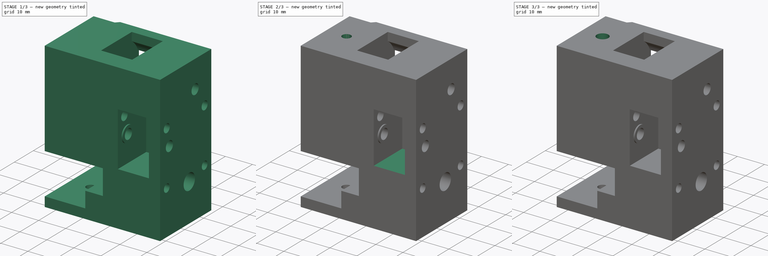
[diagram: build sequence overview — one tinted view per stage of 3, left to right]
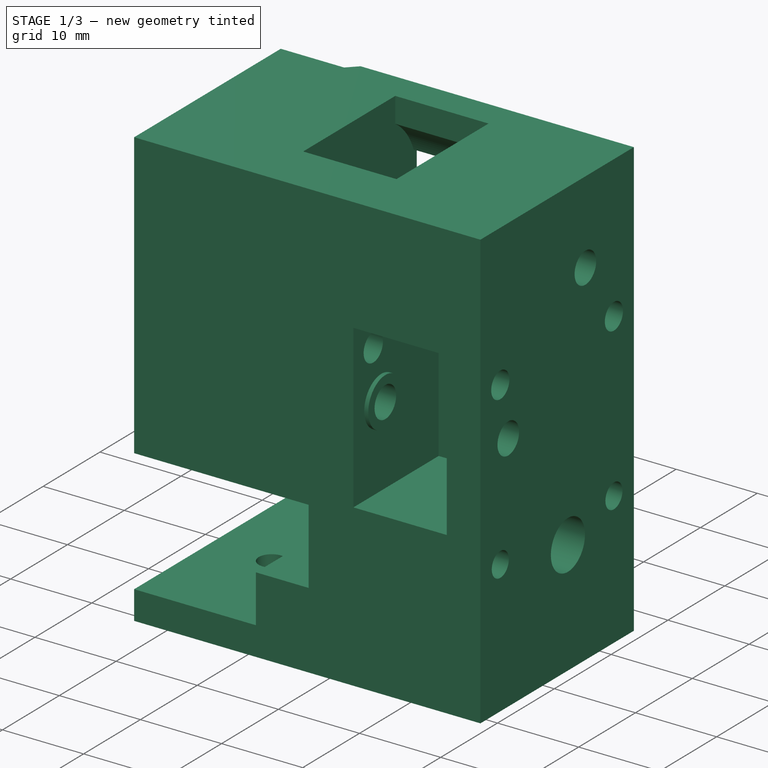
[diagram: stage 1 of 3 — iso view after this stage's code; geometry added in this stage tinted green]
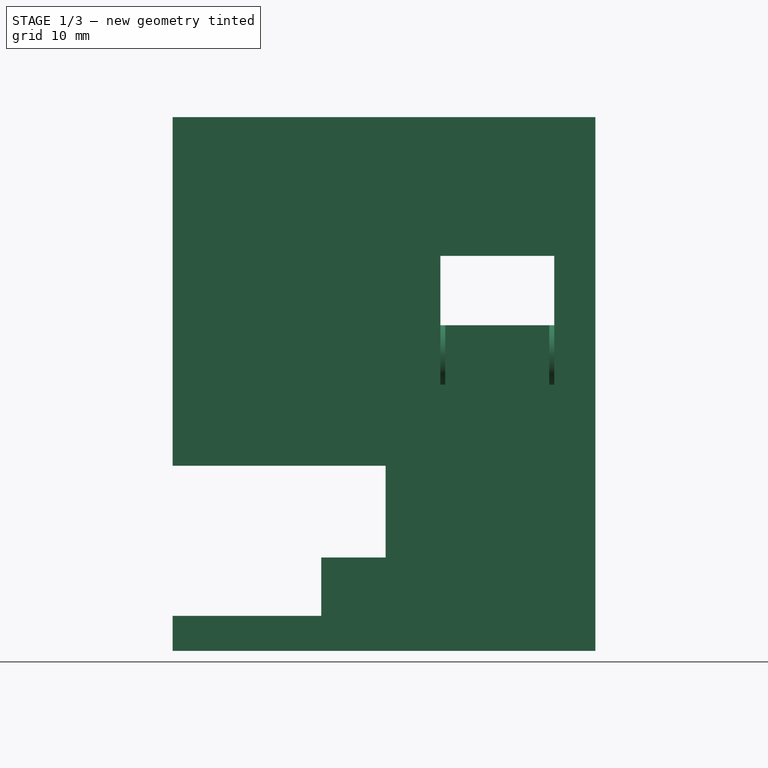
[diagram: stage 1 of 3 — front view after this stage's code; geometry added in this stage tinted green]
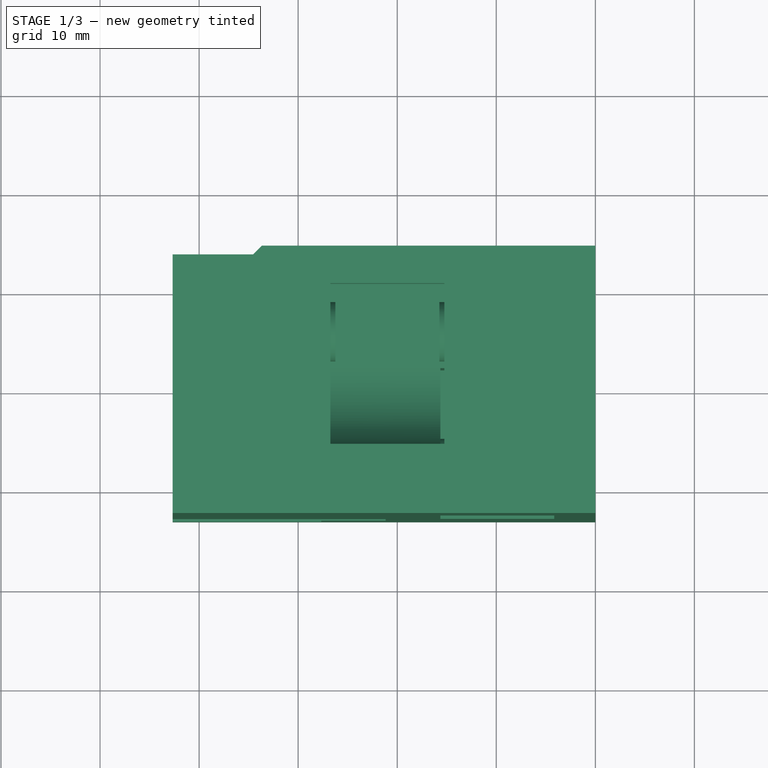
[diagram: stage 1 of 3 — top view after this stage's code; geometry added in this stage tinted green]
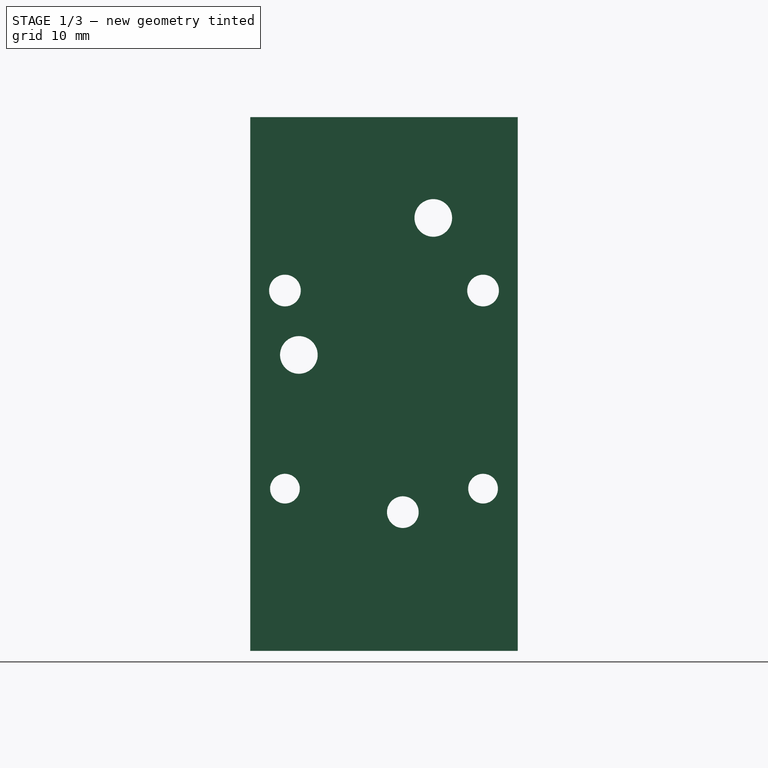
[diagram: stage 1 of 3 — right view after this stage's code; geometry added in this stage tinted green]
FCSTD DOCUMENT  (FreeCAD 1.0R38641 +468 (Git))
Label: k1_joint_right
License: All rights reserved
LicenseURL: https://en.wikipedia.org/wiki/All_rights_reserved
objects: App::Link×5, Sketcher::SketchObject×3, PartDesign::Pocket×3, PartDesign::Pad×2, Part::Feature×1, PartDesign::FeatureBase×1, PartDesign::Body×1, App::Part×1
note: 25 computed .brp shape members not serialized (recipe doc carries the construction recipe); baked Part::Feature solids carry a one-line shape summary decoded from their .brp
EXTERNAL_REF file=cad_powge_pulley.FCStd obj=Part
EXTERNAL_REF file=cad_mgn12h_block.FCStd obj=Body
EXTERNAL_REF file=cad_M4_DIN912_30mm.FCStd obj=Body

FEATURE [Part::Feature] Part__Feature  label="step"
  shape: bbox 42.67 x 27 x 53.87 mm, 69 faces (baked)
FEATURE [PartDesign::FeatureBase] BaseFeature
  BaseFeature = -> Part__Feature
  Suppressed = false
FEATURE [PartDesign::Body] Body  label="k1_joint_right"
  AllowCompound = false
  BaseFeature = -> Part__Feature
  Group = -> [BaseFeature,Sketch,Pocket,Pad,Sketch001,Pocket001,Pad001,Sketch002,Pocket002]
  Origin = -> Origin
  Tip = -> Pocket002
FEATURE [App::Part] Part  label="k1_joint_right_part"
  Group = -> [Part__Feature,Body,Link,Link001,Link002,Link003,Link004]
  Origin = -> Origin001
  Placement = pos=(0,0,0) rot=(0.707107,0,0.707107;3.14159rad)

RESOLVED EXTERNAL PARTS (link-assembly join: the EXTERNAL_REF files above that resolve inside this repo's crawl, each included once):
---- part cad_M4_DIN912_30mm.FCStd = doc fcstd_a8421640b679 ----
FCSTD DOCUMENT  (FreeCAD 1.0R38641 +468 (Git))
Label: cad_M4_DIN912_30mm
License: All rights reserved
LicenseURL: https://en.wikipedia.org/wiki/All_rights_reserved
objects: Sketcher::SketchObject×2, PartDesign::Revolution×1, PartDesign::Pocket×1, PartDesign::Body×1
note: 11 computed .brp shape members not serialized (recipe doc carries the construction recipe); baked Part::Feature solids carry a one-line shape summary decoded from their .brp

FEATURE [Sketcher::SketchObject] Sketch
  ArcFitTolerance = 1e-06
  AttachmentSupport = -> [YZ_Plane]
  FullyConstrained = true
  MakeInternals = false
  MapMode = 5
  Placement = pos=(0,0,0) rot=(0.57735,0.57735,0.57735;2.0944rad)
  sketch-geometry (6):
    g0: LineSegment StartX=-3.5 StartY=4 StartZ=0 EndX=-3.5 EndY=0 EndZ=0
    g1: LineSegment StartX=-3.5 StartY=0 StartZ=0 EndX=0 EndY=0 EndZ=0
    g2: LineSegment StartX=-3.5 StartY=4 StartZ=0 EndX=-2 EndY=4 EndZ=0
    g3: LineSegment StartX=-2 StartY=4 StartZ=0 EndX=-2 EndY=34 EndZ=0
    g4: LineSegment StartX=-2 StartY=34 StartZ=0 EndX=0 EndY=34 EndZ=0
    g5: LineSegment StartX=0 StartY=34 StartZ=0 EndX=0 EndY=0 EndZ=0
  constraints (17):
    c: PointOnObject(g0,g-1)
    c: Vertical(g0)
    c: Coincident(g1,g0)
    c: Coincident(g2,g0)
    c: Horizontal(g2)
    c: Coincident(g3,g2)
    c: Vertical(g3)
    c: Coincident(g4,g3)
    c: Horizontal(g4)
    c: Distance(g0,g0) = 4
    c: Distance(g3,g3) = 30
    c: PointOnObject(g4,g-2)
    c: Coincident(g1,g-1)
    c: Distance(g1,g1) = 3.5
    c: Distance(g4,g4) = 2
    c: Coincident(g5,g4)
    c: Coincident(g5,g1)
FEATURE [PartDesign::Revolution] Revolution
  Angle = 360
  Angle2 = 60
  Axis = (0,0,1)
  Base = (0,0,0)
  Placement = pos=(0,0,0) rot=(1,1,1;2.0944rad)
  Profile = -> Sketch
  ReferenceAxis = -> Sketch [V_Axis]
  Refine = true
  Suppressed = false
  Type = 0
FEATURE [Sketcher::SketchObject] Sketch001
  ArcFitTolerance = 1e-06
  AttachmentSupport = -> [Revolution]
  FullyConstrained = true
  MakeInternals = false
  MapMode = 5
  Placement = pos=(0,0,8e-16) rot=(0.707107,0.707107,0;3.14159rad)
  sketch-geometry (7):
    g0: LineSegment StartX=0 StartY=2.5 StartZ=0 EndX=-2.16506 EndY=1.25 EndZ=0
    g1: LineSegment StartX=-2.16506 StartY=1.25 StartZ=0 EndX=-2.16506 EndY=-1.25 EndZ=0
    g2: LineSegment StartX=-2.16506 StartY=-1.25 StartZ=0 EndX=-6.3047e-12 EndY=-2.5 EndZ=0
    g3: LineSegment StartX=-6.3047e-12 StartY=-2.5 StartZ=0 EndX=2.16506 EndY=-1.25 EndZ=0
    g4: LineSegment StartX=2.16506 StartY=-1.25 StartZ=0 EndX=2.16506 EndY=1.25 EndZ=0
    g5: LineSegment StartX=2.16506 StartY=1.25 StartZ=0 EndX=0 EndY=2.5 EndZ=0
    g6: Circle [constr] CenterX=0 CenterY=0 CenterZ=0 NormalX=0 NormalY=0 NormalZ=1 AngleXU=0 Radius=2.5
  constraints (16):
    c: Coincident(g0,g1)
    c: Coincident(g1,g2)
    c: Coincident(g2,g3)
    c: Coincident(g3,g4)
    c: Coincident(g4,g5)
    c: Coincident(g5,g0)
    c: Equal(g0, g1-g5) x5
    c: PointOnObject(g0,g6)
    c: PointOnObject(g1,g6)
    c: PointOnObject(g2,g6)
    c: PointOnObject(g3,g6)
    c: PointOnObject(g4,g6)
    c: PointOnObject(g5,g6)
    c: Coincident(g6,g-1)
    c: PointOnObject(g5,g-2)
    c: Diameter(g6) = 5
FEATURE [PartDesign::Pocket] Pocket
  BaseFeature = -> Revolution
  Direction = (0,0,1)
  Length = 2
  Length2 = 5
  Placement = pos=(0,0,0) rot=(1,1,1;2.0944rad)
  Profile = -> Sketch001
  ReferenceAxis = -> Sketch001 [N_Axis]
  Refine = true
  Suppressed = false
  Type = 0
FEATURE [PartDesign::Body] Body  label="cad_M4_DIN912_30mm"
  AllowCompound = false
  Group = -> [Sketch,Revolution,Sketch001,Pocket]
  Origin = -> Origin
  Tip = -> Pocket
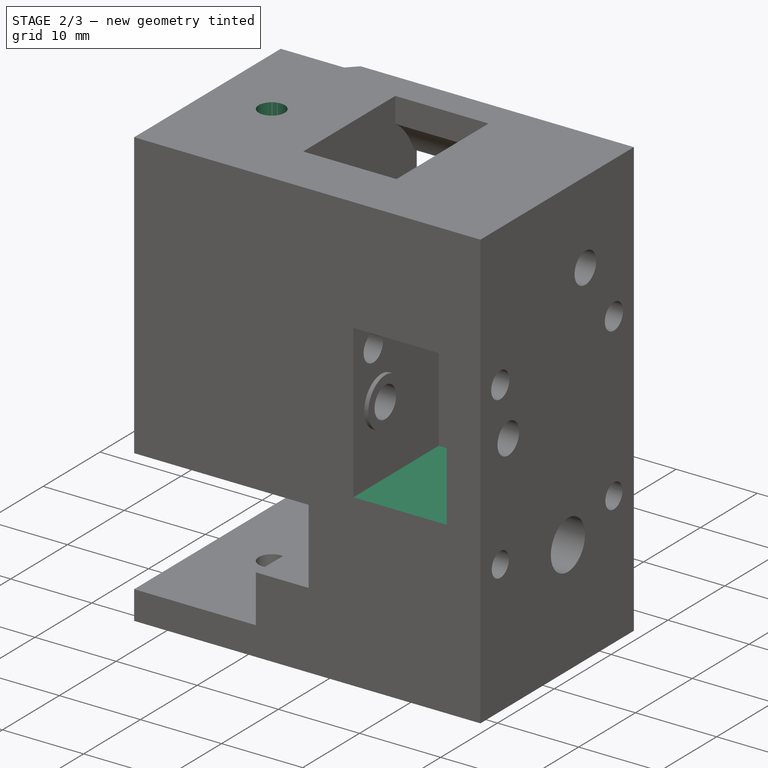
[diagram: stage 2 of 3 — iso view after this stage's code; geometry added in this stage tinted green]
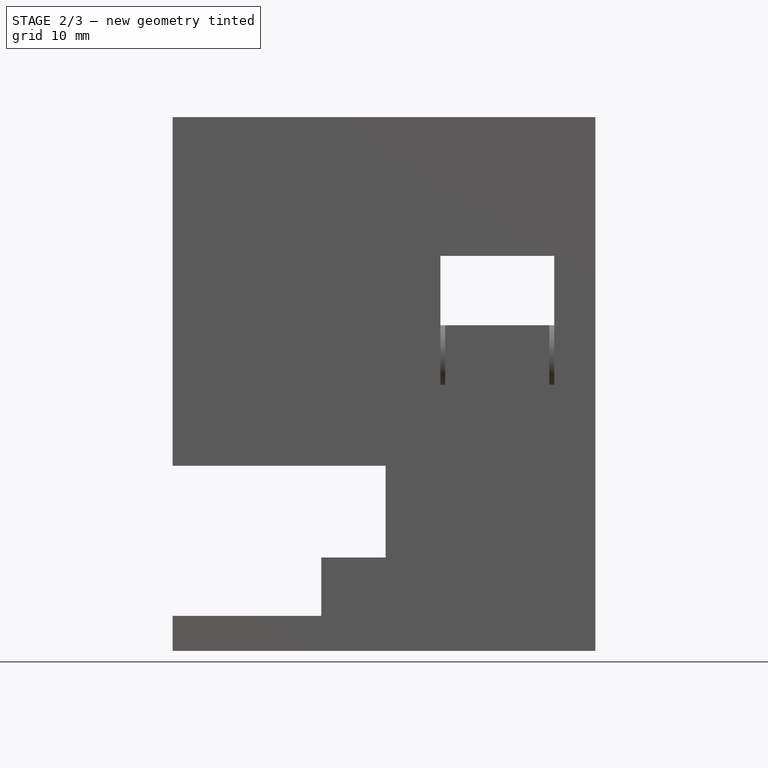
[diagram: stage 2 of 3 — front view after this stage's code; geometry added in this stage tinted green]
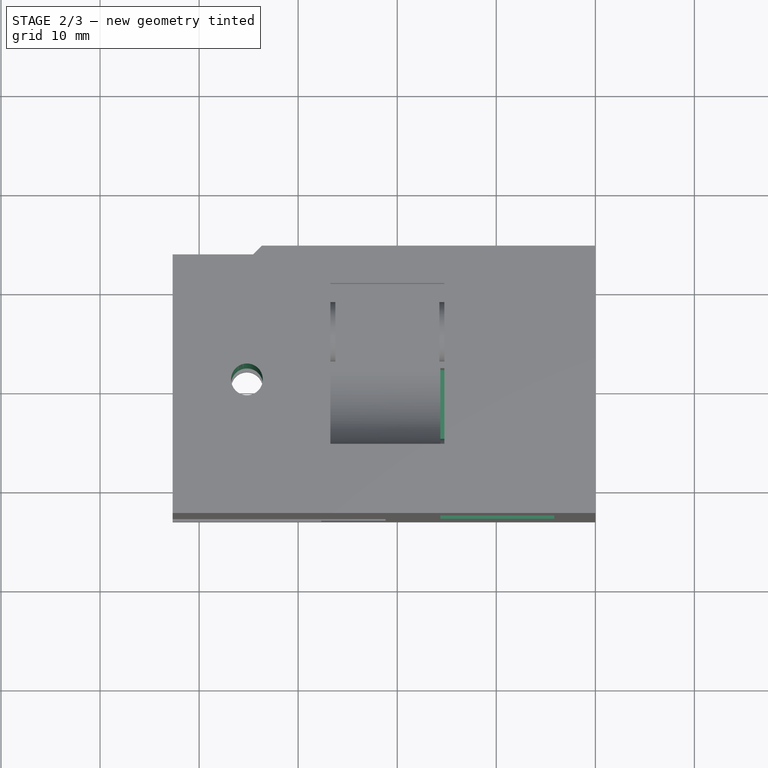
[diagram: stage 2 of 3 — top view after this stage's code; geometry added in this stage tinted green]
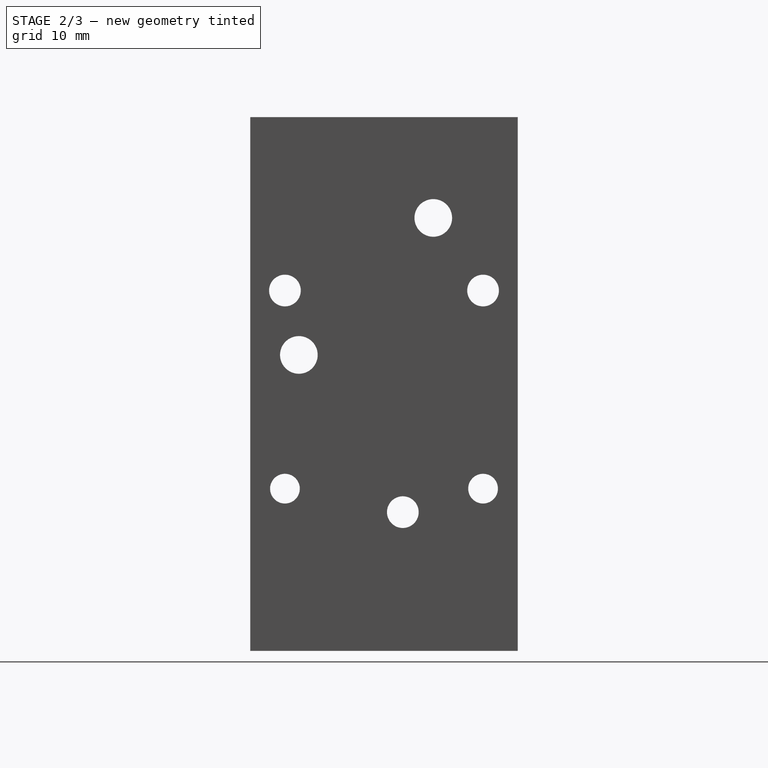
[diagram: stage 2 of 3 — right view after this stage's code; geometry added in this stage tinted green]
FEATURE [App::Link] Link  label="cad_powge_pulley_top_link"
  LinkPlacement = pos=(14.85,-18.095,24) rot=(0,1,0;1.5708rad)
  LinkedObject = -> <external cad_powge_pulley.FCStd>#Part
  Placement = pos=(14.85,-18.095,24) rot=(0,1,0;1.5708rad)
FEATURE [App::Link] Link001  label="cad_powge_pulley_bottom_link"
  LinkPlacement = pos=(3.7549,-4.525,37.83) rot=(0,1,0;1.5708rad)
  LinkedObject = -> <external cad_powge_pulley.FCStd>#Part
  Placement = pos=(3.7549,-4.525,37.83) rot=(0,1,0;1.5708rad)
FEATURE [App::Link] Link002  label="cad_mgn12h_block_link"
  LinkPlacement = pos=(29.9999,-9.5,43.2) rot=(0,1,0;1.5708rad)
  LinkedObject = -> <external cad_mgn12h_block.FCStd>#Body
  Placement = pos=(29.9999,-9.5,43.2) rot=(0,1,0;1.5708rad)
FEATURE [App::Link] Link003  label="cad_m4_din912_30mm_1_link"
  LinkPlacement = pos=(-5.3,-18.095,24) rot=(0,1,0;1.5708rad)
  LinkedObject = -> <external cad_M4_DIN912_30mm.FCStd>#Body
  Placement = pos=(-5.3,-18.095,24) rot=(0,1,0;1.5708rad)
FEATURE [App::Link] Link004  label="cad_m4_din912_30mm_2_link"
  LinkPlacement = pos=(-9.67,-4.525,37.83) rot=(0,1,0;1.5708rad)
  LinkedObject = -> <external cad_M4_DIN912_30mm.FCStd>#Body
  Placement = pos=(-9.67,-4.525,37.83) rot=(0,1,0;1.5708rad)
FEATURE [Sketcher::SketchObject] Sketch
  ArcFitTolerance = 1e-06
  AttachmentSupport = -> [BaseFeature]
  ExternalGeometry = -> [BaseFeature]
  FullyConstrained = true
  MakeInternals = false
  MapMode = 5
  Placement = pos=(0,0,48) rot=(0,0,1;0rad)
  sketch-geometry (4):
    g0: LineSegment StartX=-12.67 StartY=4 StartZ=0 EndX=-3.67 EndY=4 EndZ=0
    g1: LineSegment StartX=-3.67 StartY=4 StartZ=0 EndX=-4.87 EndY=2.8 EndZ=0
    g2: LineSegment StartX=-4.87 StartY=2.8 StartZ=0 EndX=-12.67 EndY=2.8 EndZ=0
    g3: LineSegment StartX=-12.67 StartY=2.8 StartZ=0 EndX=-12.67 EndY=4 EndZ=0
  constraints (11):
    c: Coincident(g0,g-4)
    c: PointOnObject(g0,g-3)
    c: Coincident(g1,g0)
    c: Coincident(g2,g1)
    c: PointOnObject(g2,g-4)
    c: Horizontal(g2)
    c: Coincident(g3,g2)
    c: Coincident(g3,g0)
    c: Distance(g3,g3) = 1.2
    c: Distance(g0,g0) = 9
    c: Angle(g1,g2) = 2.35619
FEATURE [PartDesign::Pocket] Pocket
  BaseFeature = -> BaseFeature
  Direction = (0,0,-1)
  Length = 0
  Length2 = 5
  Profile = -> Sketch
  ReferenceAxis = -> Sketch [N_Axis]
  Refine = true
  Suppressed = false
  Type = 3
  UpToFace = -> BaseFeature [Face26]
FEATURE [PartDesign::Pad] Pad
  BaseFeature = -> Pocket
  Direction = (0,0,1)
  Length = 1.13
  Length2 = 10
  Profile = -> Pocket [Face22]
  Refine = true
  Suppressed = false
  Type = 0
FEATURE [Sketcher::SketchObject] Sketch001
  ArcFitTolerance = 1e-06
  AttachmentSupport = -> [Pad]
  ExternalGeometry = -> [Pad]
  FullyConstrained = true
  MakeInternals = false
  MapMode = 5
  Placement = pos=(0,0,19.31) rot=(1,0,0;3.14159rad)
  sketch-geometry (1):
    g0: Circle CenterX=-5.17 CenterY=9.5 CenterZ=0 NormalX=0 NormalY=0 NormalZ=1 AngleXU=0 Radius=1.6
  constraints (2):
    c: Coincident(g0,g-3)
    c: Diameter(g0) = 3.2
FEATURE [PartDesign::Pocket] Pocket001
  BaseFeature = -> Pad
  Direction = (0,0,1)
  Length = 5
  Length2 = 5
  Profile = -> Sketch001
  ReferenceAxis = -> Sketch001 [N_Axis]
  Refine = true
  Suppressed = false
  Type = 1
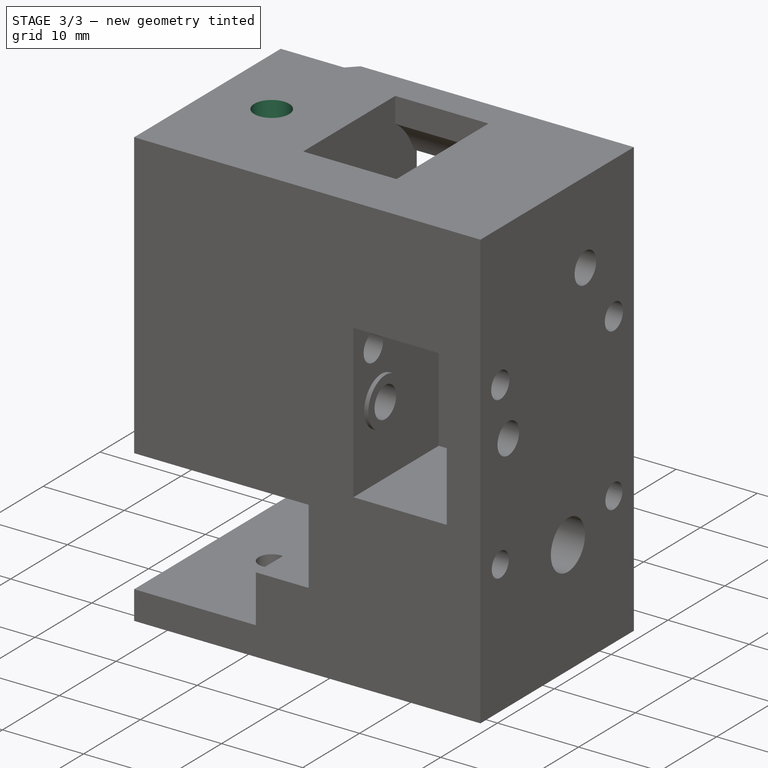
[diagram: stage 3 of 3 — iso view after this stage's code; geometry added in this stage tinted green]
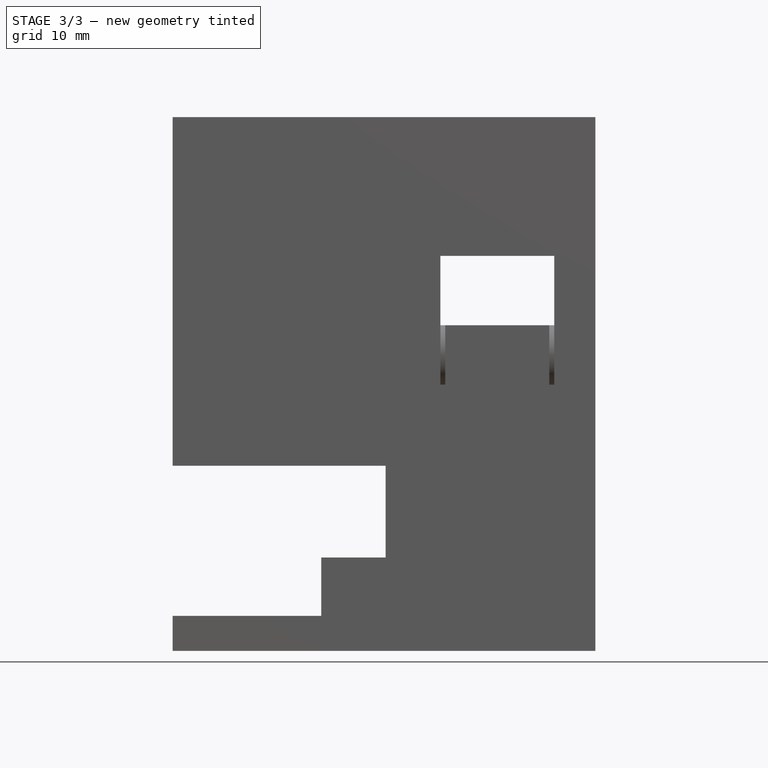
[diagram: stage 3 of 3 — front view after this stage's code; geometry added in this stage tinted green]
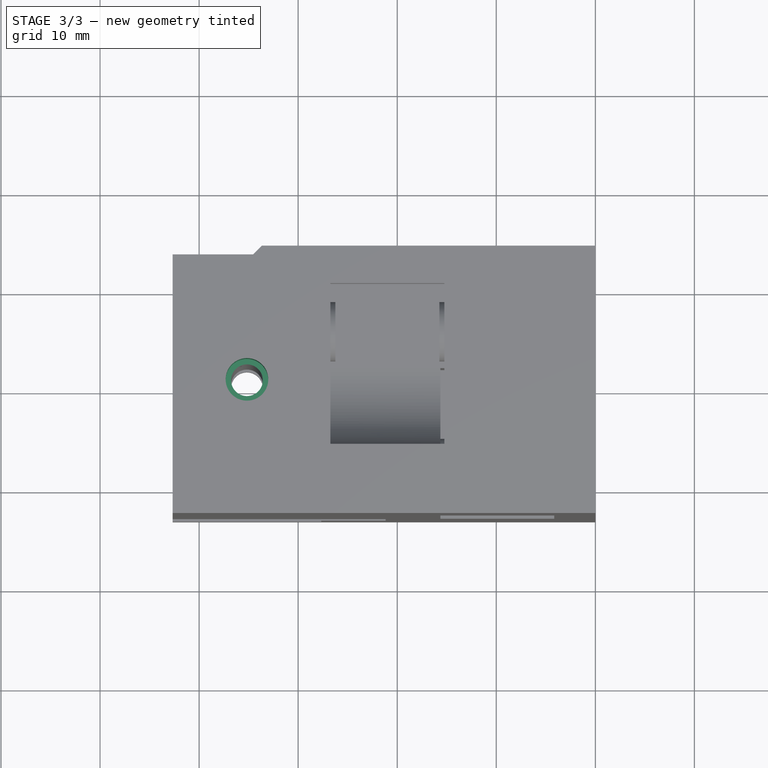
[diagram: stage 3 of 3 — top view after this stage's code; geometry added in this stage tinted green]
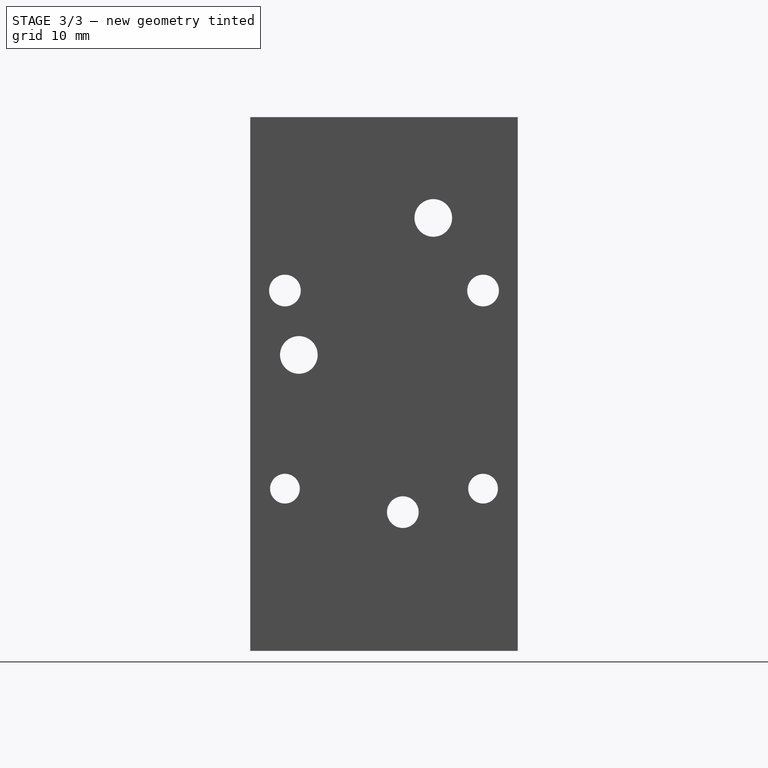
[diagram: stage 3 of 3 — right view after this stage's code; geometry added in this stage tinted green]
FEATURE [PartDesign::Pad] Pad001
  BaseFeature = -> Pocket001
  Direction = (0,0,-1)
  Length = 10
  Length2 = 10
  Profile = -> Pocket001 [Face64]
  Refine = true
  Suppressed = false
  Type = 3
  UpToFace = -> Pocket001 [Face20]
FEATURE [Sketcher::SketchObject] Sketch002
  ArcFitTolerance = 1e-06
  AttachmentSupport = -> [Pad001]
  ExternalGeometry = -> [Pad001]
  FullyConstrained = true
  MakeInternals = false
  MapMode = 5
  Placement = pos=(0,0,48) rot=(0,0,1;0rad)
  sketch-geometry (1):
    g0: Circle CenterX=-5.17 CenterY=-9.5 CenterZ=0 NormalX=0 NormalY=0 NormalZ=1 AngleXU=0 Radius=2.15
  constraints (2):
    c: Coincident(g0,g-3)
    c: Diameter(g0) = 4.3
FEATURE [PartDesign::Pocket] Pocket002
  BaseFeature = -> Pad001
  Direction = (0,0,-1)
  Length = 5.2
  Length2 = 5
  Profile = -> Sketch002
  ReferenceAxis = -> Sketch002 [N_Axis]
  Refine = true
  Suppressed = false
  Type = 0
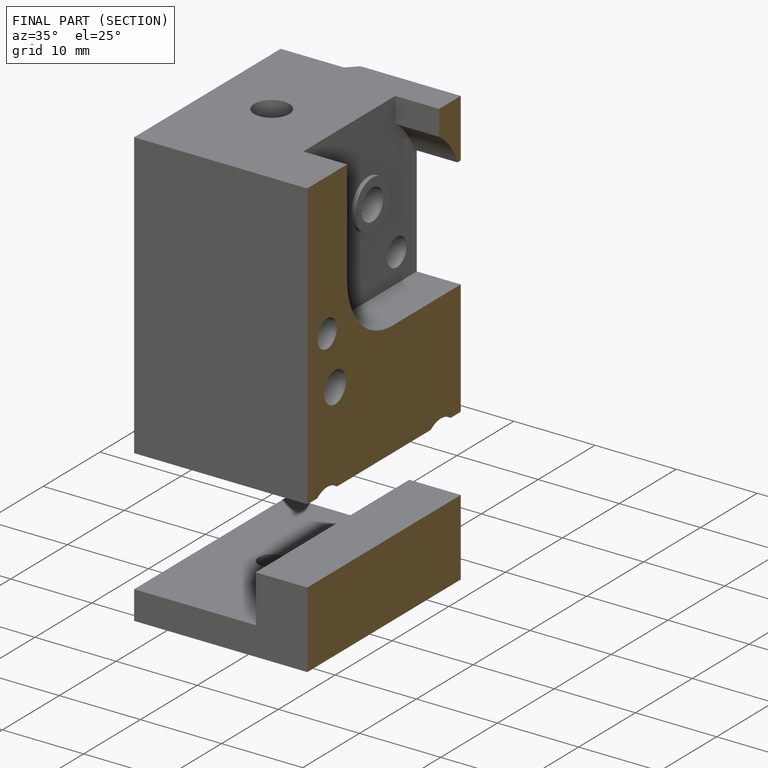
[diagram: finished part — half-section view (interior)]
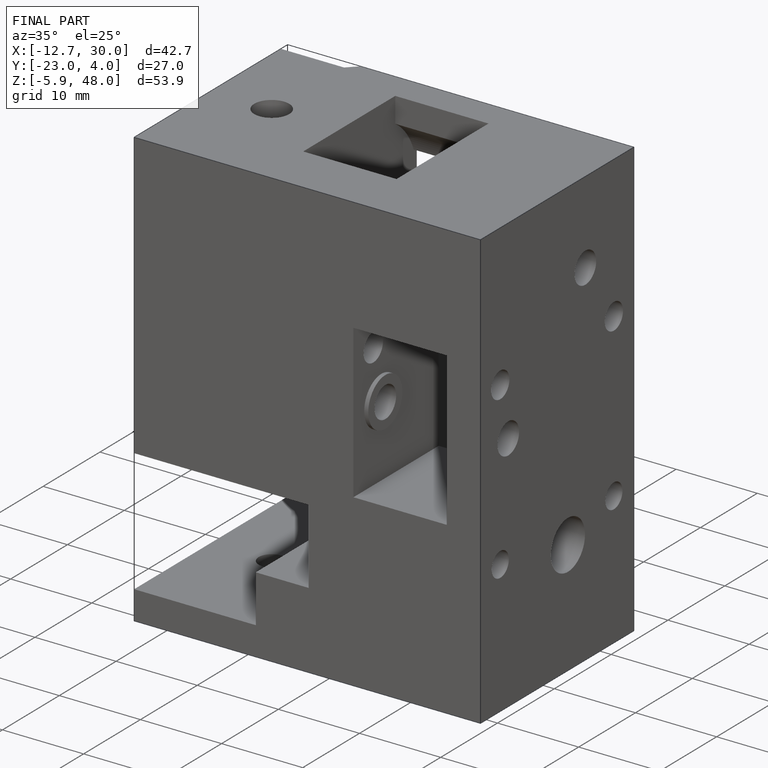
[diagram: finished part — iso view with bounding-box wireframe]
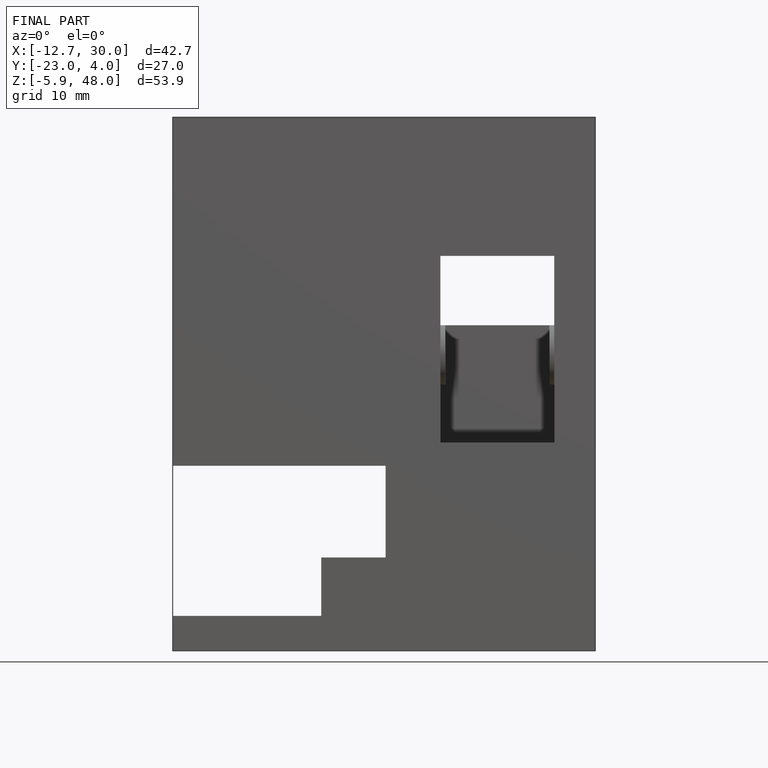
[diagram: finished part — front view with bounding-box wireframe]
